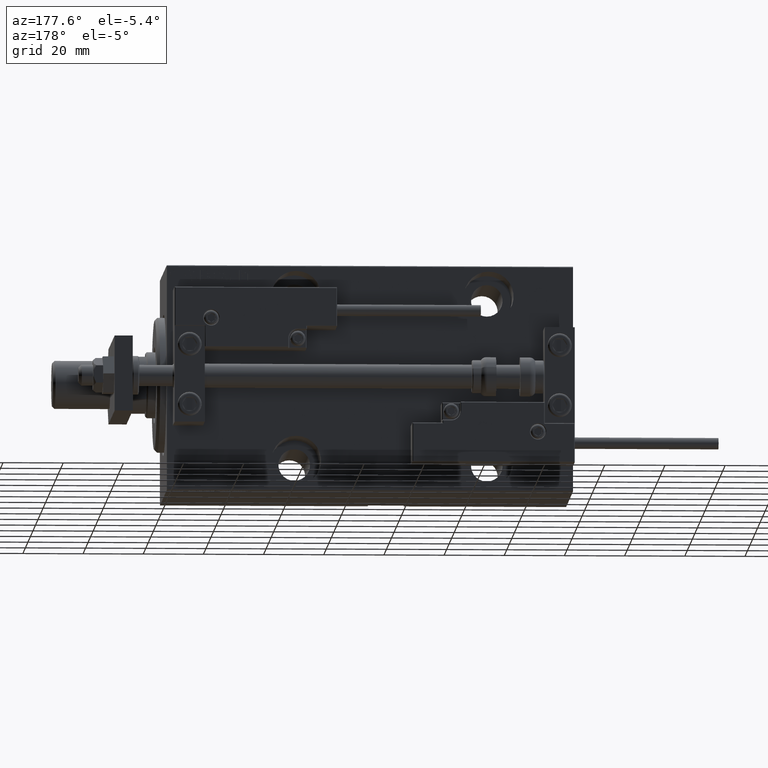
[diagram: clean part render]
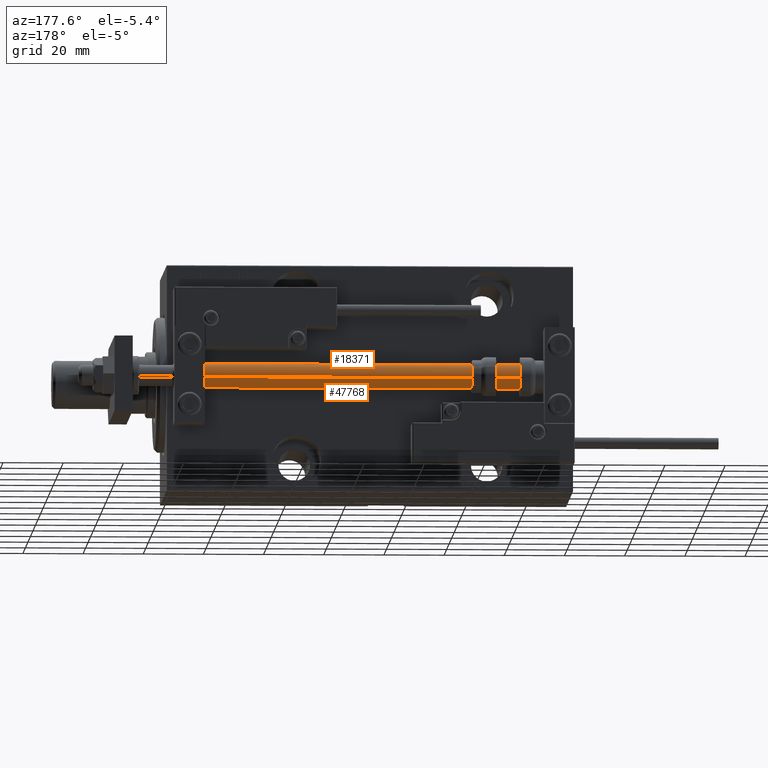
[diagram: same view with one multi-face feature highlighted, each face labeled with its STEP entity id]
A machine part, auxiliary view. The highlighted faces form ONE feature: a constant-radius fillet chain: 2 tangent blend faces with common blend radius 4 mm. The faces share edges in the B-rep.
Their STEP definitions:
[1] entity #47768 (Cylinder):
#1107 = ORIENTED_EDGE ( 'NONE', *, *, #45906, .T. ) ;
#2305 = DIRECTION ( 'NONE',  ( -1.000000000000000000, 0.000000000000000000, 0.000000000000000000 ) ) ;
#2340 = LINE ( 'NONE', #41440, #21737 ) ;
#2393 = CIRCLE ( 'NONE', #12127, 4.000000000000000000 ) ;
#4710 = AXIS2_PLACEMENT_3D ( 'NONE', #29571, #22191, #25017 ) ;
#6563 = EDGE_CURVE ( 'NONE', #38307, #27248, #2393, .T. ) ;
#8878 = CARTESIAN_POINT ( 'NONE',  ( 4.000000000000000000, 4.898587196589412829E-16, 135.0000000000000000 ) ) ;
#9106 = ORIENTED_EDGE ( 'NONE', *, *, #40320, .F. ) ;
#11917 = CARTESIAN_POINT ( 'NONE',  ( 0.000000000000000000, 0.000000000000000000, 2.000000000000029310 ) ) ;
#12127 = AXIS2_PLACEMENT_3D ( 'NONE', #11917, #19781, #19277 ) ;
#12241 = FACE_OUTER_BOUND ( 'NONE', #30124, .T. ) ;
#12248 = VECTOR ( 'NONE', #39338, 1000.000000000000000 ) ;
#16410 = VERTEX_POINT ( 'NONE', #16581 ) ;
#16581 = CARTESIAN_POINT ( 'NONE',  ( -4.000000000000000000, 0.000000000000000000, 135.0000000000000000 ) ) ;
#16807 = CARTESIAN_POINT ( 'NONE',  ( 0.000000000000000000, 0.000000000000000000, 135.0000000000000000 ) ) ;
#18193 = CARTESIAN_POINT ( 'NONE',  ( 4.000000000000000000, 4.898587196589412829E-16, 135.0000000000000000 ) ) ;
#19039 = ORIENTED_EDGE ( 'NONE', *, *, #36500, .F. ) ;
#19277 = DIRECTION ( 'NONE',  ( 1.000000000000000000, 0.000000000000000000, 0.000000000000000000 ) ) ;
#19781 = DIRECTION ( 'NONE',  ( -0.000000000000000000, -0.000000000000000000, 1.000000000000000000 ) ) ;
#21737 = VECTOR ( 'NONE', #33329, 1000.000000000000000 ) ;
#22191 = DIRECTION ( 'NONE',  ( 0.000000000000000000, 0.000000000000000000, 1.000000000000000000 ) ) ;
#24368 = LINE ( 'NONE', #8878, #12248 ) ;
#25017 = DIRECTION ( 'NONE',  ( 1.000000000000000000, 0.000000000000000000, 0.000000000000000000 ) ) ;
#27248 = VERTEX_POINT ( 'NONE', #32692 ) ;
#27739 = CYLINDRICAL_SURFACE ( 'NONE', #47954, 4.000000000000000000 ) ;
#29571 = CARTESIAN_POINT ( 'NONE',  ( 0.000000000000000000, 0.000000000000000000, 135.0000000000000000 ) ) ;
#30124 = EDGE_LOOP ( 'NONE', ( #19039, #1107, #44130, #9106 ) ) ;
#30594 = CARTESIAN_POINT ( 'NONE',  ( 4.000000000000000000, 4.898587196589412829E-16, 2.000000000000029310 ) ) ;
#32692 = CARTESIAN_POINT ( 'NONE',  ( -4.000000000000000000, 0.000000000000000000, 2.000000000000029310 ) ) ;
#33329 = DIRECTION ( 'NONE',  ( -0.000000000000000000, -0.000000000000000000, -1.000000000000000000 ) ) ;
#33922 = CIRCLE ( 'NONE', #4710, 4.000000000000000000 ) ;
#36301 = VERTEX_POINT ( 'NONE', #18193 ) ;
#36500 = EDGE_CURVE ( 'NONE', #36301, #16410, #33922, .T. ) ;
#38307 = VERTEX_POINT ( 'NONE', #30594 ) ;
#39338 = DIRECTION ( 'NONE',  ( -0.000000000000000000, -0.000000000000000000, -1.000000000000000000 ) ) ;
#40320 = EDGE_CURVE ( 'NONE', #16410, #27248, #2340, .T. ) ;
#40657 = DIRECTION ( 'NONE',  ( -0.000000000000000000, -0.000000000000000000, -1.000000000000000000 ) ) ;
#41440 = CARTESIAN_POINT ( 'NONE',  ( -4.000000000000000000, 0.000000000000000000, 135.0000000000000000 ) ) ;
#44130 = ORIENTED_EDGE ( 'NONE', *, *, #6563, .T. ) ;
#45906 = EDGE_CURVE ( 'NONE', #36301, #38307, #24368, .T. ) ;
#47768 = ADVANCED_FACE ( 'NONE', ( #12241 ), #27739, .T. ) ;
#47954 = AXIS2_PLACEMENT_3D ( 'NONE', #16807, #40657, #2305 ) ;
[2] entity #18371 (Cylinder):
#563 = EDGE_CURVE ( 'NONE', #27248, #38307, #48067, .T. ) ;
#2340 = LINE ( 'NONE', #41440, #21737 ) ;
#2351 = ORIENTED_EDGE ( 'NONE', *, *, #40320, .T. ) ;
#3722 = DIRECTION ( 'NONE',  ( -0.000000000000000000, -0.000000000000000000, -1.000000000000000000 ) ) ;
#6342 = FACE_OUTER_BOUND ( 'NONE', #21581, .T. ) ;
#6814 = CIRCLE ( 'NONE', #9263, 4.000000000000000000 ) ;
#8878 = CARTESIAN_POINT ( 'NONE',  ( 4.000000000000000000, 4.898587196589412829E-16, 135.0000000000000000 ) ) ;
#9263 = AXIS2_PLACEMENT_3D ( 'NONE', #31378, #46860, #12080 ) ;
#12080 = DIRECTION ( 'NONE',  ( 1.000000000000000000, 0.000000000000000000, 0.000000000000000000 ) ) ;
#12248 = VECTOR ( 'NONE', #39338, 1000.000000000000000 ) ;
#13955 = DIRECTION ( 'NONE',  ( 1.000000000000000000, 0.000000000000000000, 0.000000000000000000 ) ) ;
#15155 = CYLINDRICAL_SURFACE ( 'NONE', #23752, 4.000000000000000000 ) ;
#16410 = VERTEX_POINT ( 'NONE', #16581 ) ;
#16581 = CARTESIAN_POINT ( 'NONE',  ( -4.000000000000000000, 0.000000000000000000, 135.0000000000000000 ) ) ;
#17451 = ORIENTED_EDGE ( 'NONE', *, *, #563, .T. ) ;
#17577 = ORIENTED_EDGE ( 'NONE', *, *, #20857, .F. ) ;
#18026 = CARTESIAN_POINT ( 'NONE',  ( 0.000000000000000000, 0.000000000000000000, 135.0000000000000000 ) ) ;
#18193 = CARTESIAN_POINT ( 'NONE',  ( 4.000000000000000000, 4.898587196589412829E-16, 135.0000000000000000 ) ) ;
#18371 = ADVANCED_FACE ( 'NONE', ( #6342 ), #15155, .T. ) ;
#20857 = EDGE_CURVE ( 'NONE', #16410, #36301, #6814, .T. ) ;
#21351 = DIRECTION ( 'NONE',  ( -1.000000000000000000, 0.000000000000000000, 0.000000000000000000 ) ) ;
#21581 = EDGE_LOOP ( 'NONE', ( #45770, #17577, #2351, #17451 ) ) ;
#21737 = VECTOR ( 'NONE', #33329, 1000.000000000000000 ) ;
#21994 = AXIS2_PLACEMENT_3D ( 'NONE', #33272, #48744, #13955 ) ;
#23752 = AXIS2_PLACEMENT_3D ( 'NONE', #18026, #3722, #21351 ) ;
#24368 = LINE ( 'NONE', #8878, #12248 ) ;
#27248 = VERTEX_POINT ( 'NONE', #32692 ) ;
#30594 = CARTESIAN_POINT ( 'NONE',  ( 4.000000000000000000, 4.898587196589412829E-16, 2.000000000000029310 ) ) ;
#31378 = CARTESIAN_POINT ( 'NONE',  ( 0.000000000000000000, 0.000000000000000000, 135.0000000000000000 ) ) ;
#32692 = CARTESIAN_POINT ( 'NONE',  ( -4.000000000000000000, 0.000000000000000000, 2.000000000000029310 ) ) ;
#33272 = CARTESIAN_POINT ( 'NONE',  ( 0.000000000000000000, 0.000000000000000000, 2.000000000000029310 ) ) ;
#33329 = DIRECTION ( 'NONE',  ( -0.000000000000000000, -0.000000000000000000, -1.000000000000000000 ) ) ;
#36301 = VERTEX_POINT ( 'NONE', #18193 ) ;
#38307 = VERTEX_POINT ( 'NONE', #30594 ) ;
#39338 = DIRECTION ( 'NONE',  ( -0.000000000000000000, -0.000000000000000000, -1.000000000000000000 ) ) ;
#40320 = EDGE_CURVE ( 'NONE', #16410, #27248, #2340, .T. ) ;
#41440 = CARTESIAN_POINT ( 'NONE',  ( -4.000000000000000000, 0.000000000000000000, 135.0000000000000000 ) ) ;
#45770 = ORIENTED_EDGE ( 'NONE', *, *, #45906, .F. ) ;
#45906 = EDGE_CURVE ( 'NONE', #36301, #38307, #24368, .T. ) ;
#46860 = DIRECTION ( 'NONE',  ( 0.000000000000000000, 0.000000000000000000, 1.000000000000000000 ) ) ;
#48067 = CIRCLE ( 'NONE', #21994, 4.000000000000000000 ) ;
#48744 = DIRECTION ( 'NONE',  ( -0.000000000000000000, -0.000000000000000000, 1.000000000000000000 ) ) ;